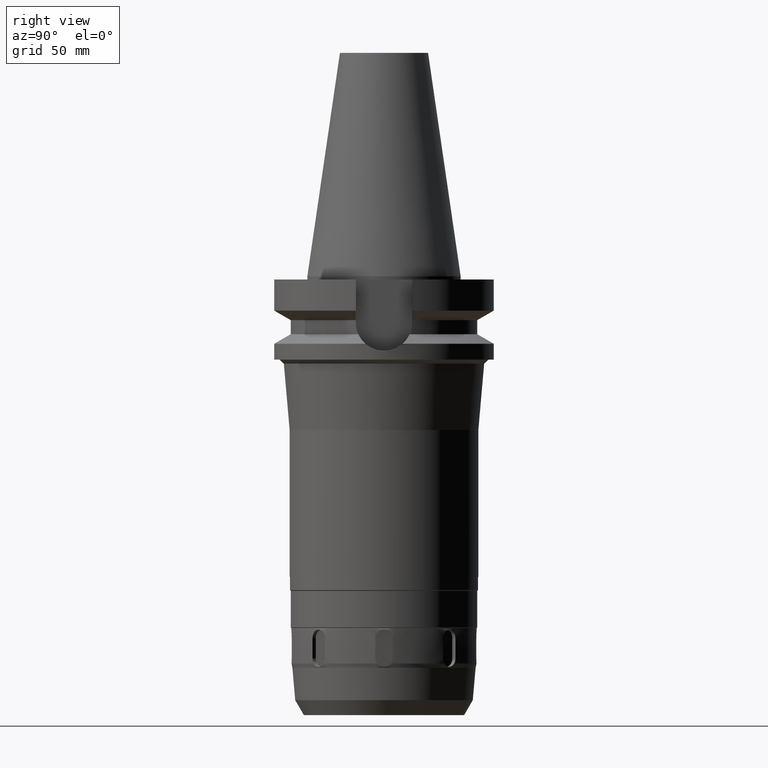
[diagram: clean part render]
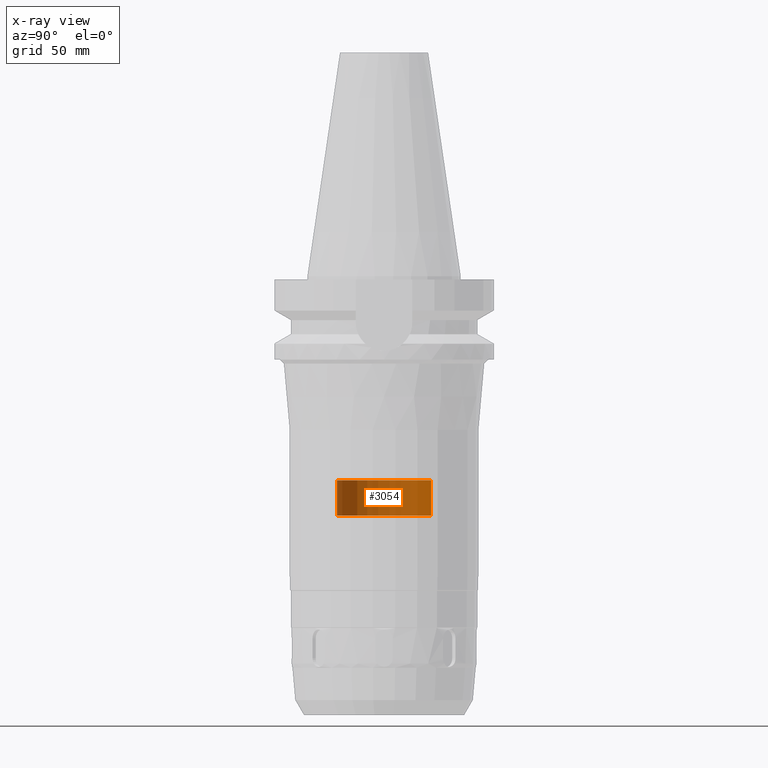
[diagram: x-ray — body ghosted, one internal face saturated and labeled with its STEP entity id]
A machine part, right view, then the same camera in x-ray: the body is ghosted and one INTERNAL B-rep face — a face not visible from any outside direction — is saturated and labeled: STEP entity #3054.
In plain terms, the highlighted cylindrical surface (partial cylindrical patch) has radius 21.5 mm, axis along (0, 0, -1).
Its self-contained STEP definition (entity closure, byte-faithful):
#178=CARTESIAN_POINT('',(0.E0,2.656136442671E-14,-9.3E1));
#179=DIRECTION('',(0.E0,0.E0,1.E0));
#180=DIRECTION('',(0.E0,1.E0,0.E0));
#181=AXIS2_PLACEMENT_3D('',#178,#179,#180);
#202=DIRECTION('',(0.E0,0.E0,1.E0));
#203=VECTOR('',#202,1.6E1);
#204=CARTESIAN_POINT('',(0.E0,2.15E1,-1.09E2));
#205=LINE('',#204,#203);
#209=DIRECTION('',(0.E0,0.E0,1.E0));
#210=VECTOR('',#209,1.6E1);
#211=CARTESIAN_POINT('',(0.E0,-2.15E1,-1.09E2));
#212=LINE('',#211,#210);
#216=CARTESIAN_POINT('',(0.E0,2.656136442671E-14,-1.09E2));
#217=DIRECTION('',(0.E0,0.E0,-1.E0));
#218=DIRECTION('',(0.E0,-1.E0,0.E0));
#219=AXIS2_PLACEMENT_3D('',#216,#217,#218);
#2518=CARTESIAN_POINT('',(0.E0,-2.15E1,-9.3E1));
#2519=CARTESIAN_POINT('',(0.E0,2.15E1,-9.3E1));
#2520=VERTEX_POINT('',#2518);
#2521=VERTEX_POINT('',#2519);
#2522=CARTESIAN_POINT('',(0.E0,2.15E1,-1.09E2));
#2523=VERTEX_POINT('',#2522);
#2524=CARTESIAN_POINT('',(0.E0,-2.15E1,-1.09E2));
#2525=VERTEX_POINT('',#2524);
#3042=CARTESIAN_POINT('',(0.E0,2.656136442671E-14,1.1689E2));
#3043=DIRECTION('',(0.E0,0.E0,-1.E0));
#3044=DIRECTION('',(0.E0,-1.E0,0.E0));
#3045=AXIS2_PLACEMENT_3D('',#3042,#3043,#3044);
#3046=CYLINDRICAL_SURFACE('',#3045,2.15E1);
#3047=ORIENTED_EDGE('',*,*,#3032,.F.);
#3049=ORIENTED_EDGE('',*,*,#3048,.F.);
#3050=ORIENTED_EDGE('',*,*,#3035,.T.);
#3051=ORIENTED_EDGE('',*,*,#3018,.F.);
#3052=EDGE_LOOP('',(#3047,#3049,#3050,#3051));
#3053=FACE_OUTER_BOUND('',#3052,.F.);
#182=CIRCLE('',#181,2.15E1);
#220=CIRCLE('',#219,2.15E1);
#3018=EDGE_CURVE('',#2521,#2520,#182,.T.);
#3032=EDGE_CURVE('',#2523,#2521,#205,.T.);
#3035=EDGE_CURVE('',#2525,#2520,#212,.T.);
#3048=EDGE_CURVE('',#2525,#2523,#220,.T.);
#3054=ADVANCED_FACE('',(#3053),#3046,.F.);